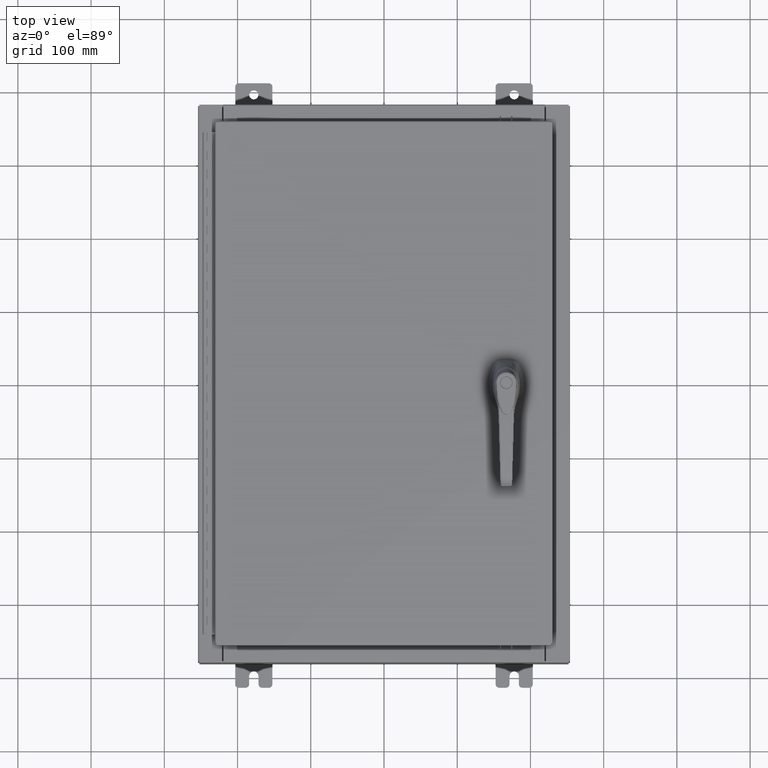
[diagram: clean part render]
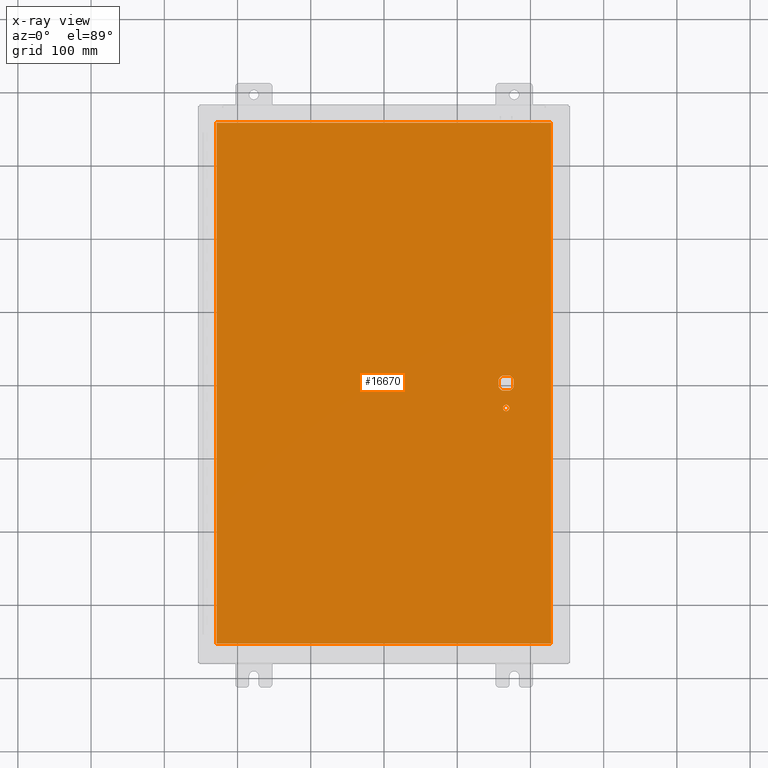
[diagram: x-ray — body ghosted, one internal face saturated and labeled with its STEP entity id]
A machine part, top view, then the same camera in x-ray: the body is ghosted and one INTERNAL B-rep face — a face not visible from any outside direction — is saturated and labeled: STEP entity #16670.
In plain terms, the highlighted planar face has unit normal (0, 0, -1).
Its self-contained STEP definition (entity closure, byte-faithful):
#336 = CARTESIAN_POINT ( 'NONE',  ( 6.778227370756310300, -0.4029999999999252000, -0.07470000000000003000 ) ) ;
#358 = ORIENTED_EDGE ( 'NONE', *, *, #3280, .T. ) ;
#1349 = DIRECTION ( 'NONE',  ( -1.000000000000000000, 0.0000000000000000000, 0.0000000000000000000 ) ) ;
#3280 = EDGE_CURVE ( 'NONE', #68779, #114848, #81499, .T. ) ;
#4573 = DIRECTION ( 'NONE',  ( -0.0000000000000000000, -0.0000000000000000000, 1.000000000000000000 ) ) ;
#5808 = CIRCLE ( 'NONE', #76717, 0.4499999999999156900 ) ;
#6442 = EDGE_CURVE ( 'NONE', #14933, #54590, #114801, .T. ) ;
#7031 = LINE ( 'NONE', #105819, #31216 ) ;
#7733 = CARTESIAN_POINT ( 'NONE',  ( 6.578000000000000300, 0.0000000000000000000, -0.07470000000000003000 ) ) ;
#7757 = CARTESIAN_POINT ( 'NONE',  ( 6.578000000000000300, 0.0000000000000000000, -0.07470000000000003000 ) ) ;
#8061 = VERTEX_POINT ( 'NONE', #93733 ) ;
#9568 = DIRECTION ( 'NONE',  ( -0.0000000000000000000, -0.0000000000000000000, 1.000000000000000000 ) ) ;
#9851 = CARTESIAN_POINT ( 'NONE',  ( 8.990300000000001300, -14.00629999999999800, -0.07470000000000076600 ) ) ;
#12297 = CARTESIAN_POINT ( 'NONE',  ( -8.990299999999997700, 14.00629999999999800, -0.07470000000000000300 ) ) ;
#12556 = CIRCLE ( 'NONE', #75507, 0.1715000000000000700 ) ;
#13131 = FACE_BOUND ( 'NONE', #46268, .T. ) ;
#13540 = ORIENTED_EDGE ( 'NONE', *, *, #23347, .F. ) ;
#14933 = VERTEX_POINT ( 'NONE', #12297 ) ;
#15861 = CARTESIAN_POINT ( 'NONE',  ( 8.990300000000001300, -14.00629999999999800, -0.07470000000000000300 ) ) ;
#16460 = CARTESIAN_POINT ( 'NONE',  ( -8.990299999999996000, -14.00629999999999600, -0.07470000000000000300 ) ) ;
#16670 = ADVANCED_FACE ( 'NONE', ( #13131, #107600, #104735 ), #36320, .T. ) ;
#16904 = DIRECTION ( 'NONE',  ( -1.000000000000000000, 8.881784197001256300E-016, 0.0000000000000000000 ) ) ;
#19274 = CARTESIAN_POINT ( 'NONE',  ( -8.990299999999996000, -14.00629999999999800, -0.07469999999999800400 ) ) ;
#19603 = DIRECTION ( 'NONE',  ( 0.0000000000000000000, -1.000000000000000000, 0.0000000000000000000 ) ) ;
#22568 = ORIENTED_EDGE ( 'NONE', *, *, #56903, .T. ) ;
#23347 = EDGE_CURVE ( 'NONE', #44611, #14933, #7031, .T. ) ;
#23799 = EDGE_CURVE ( 'NONE', #8061, #114848, #54020, .T. ) ;
#25521 = VERTEX_POINT ( 'NONE', #71933 ) ;
#25738 = EDGE_CURVE ( 'NONE', #82179, #69407, #65427, .T. ) ;
#26062 = ORIENTED_EDGE ( 'NONE', *, *, #27299, .F. ) ;
#26970 = CARTESIAN_POINT ( 'NONE',  ( 6.578000000000000300, -1.338000000000000100, -0.07470000000000003000 ) ) ;
#27299 = EDGE_CURVE ( 'NONE', #62941, #44611, #43754, .T. ) ;
#27683 = CARTESIAN_POINT ( 'NONE',  ( 6.578000000000000300, 0.0000000000000000000, -0.07470000000000003000 ) ) ;
#28137 = DIRECTION ( 'NONE',  ( 0.0000000000000000000, 1.000000000000000000, 0.0000000000000000000 ) ) ;
#29410 = CARTESIAN_POINT ( 'NONE',  ( 6.175000000000075300, 0.0000000000000000000, -0.07470000000000003000 ) ) ;
#29480 = EDGE_LOOP ( 'NONE', ( #358, #77548, #22568, #33194, #112126, #52088, #79731, #87837 ) ) ;
#30908 = CARTESIAN_POINT ( 'NONE',  ( 0.0000000000000000000, 0.4029999999999252000, -0.07470000000000003000 ) ) ;
#31216 = VECTOR ( 'NONE', #41720, 39.37007874015748100 ) ;
#33194 = ORIENTED_EDGE ( 'NONE', *, *, #45798, .T. ) ;
#34778 = EDGE_CURVE ( 'NONE', #25521, #56143, #72753, .T. ) ;
#34919 = DIRECTION ( 'NONE',  ( 1.000000000000000000, 0.0000000000000000000, 0.0000000000000000000 ) ) ;
#36134 = DIRECTION ( 'NONE',  ( -1.000000000000000000, 0.0000000000000000000, 0.0000000000000000000 ) ) ;
#36320 = PLANE ( 'NONE',  #52024 ) ;
#36872 = DIRECTION ( 'NONE',  ( -1.000000000000000000, 0.0000000000000000000, 0.0000000000000000000 ) ) ;
#41720 = DIRECTION ( 'NONE',  ( -1.000000000000000000, -0.0000000000000000000, -0.0000000000000000000 ) ) ;
#43754 = LINE ( 'NONE', #9851, #65185 ) ;
#44551 = VERTEX_POINT ( 'NONE', #78563 ) ;
#44611 = VERTEX_POINT ( 'NONE', #60476 ) ;
#44844 = EDGE_CURVE ( 'NONE', #54590, #62941, #44888, .T. ) ;
#44876 = ORIENTED_EDGE ( 'NONE', *, *, #44844, .F. ) ;
#44888 = LINE ( 'NONE', #19274, #50646 ) ;
#45544 = DIRECTION ( 'NONE',  ( 0.0000000000000000000, 0.0000000000000000000, -1.000000000000000000 ) ) ;
#45719 = ORIENTED_EDGE ( 'NONE', *, *, #34778, .T. ) ;
#45798 = EDGE_CURVE ( 'NONE', #102444, #44551, #66261, .T. ) ;
#46268 = EDGE_LOOP ( 'NONE', ( #49213, #45719 ) ) ;
#49213 = ORIENTED_EDGE ( 'NONE', *, *, #86788, .T. ) ;
#50646 = VECTOR ( 'NONE', #83270, 39.37007874015748100 ) ;
#51189 = VECTOR ( 'NONE', #55647, 39.37007874015748100 ) ;
#51390 = AXIS2_PLACEMENT_3D ( 'NONE', #110941, #55935, #1349 ) ;
#51777 = CARTESIAN_POINT ( 'NONE',  ( 6.778227370756310300, 0.4029999999999250300, -0.07470000000000003000 ) ) ;
#52024 = AXIS2_PLACEMENT_3D ( 'NONE', #63532, #45544, #109655 ) ;
#52088 = ORIENTED_EDGE ( 'NONE', *, *, #25738, .T. ) ;
#52911 = CARTESIAN_POINT ( 'NONE',  ( 0.0000000000000000000, -0.4029999999999252000, -0.07470000000000003000 ) ) ;
#54020 = LINE ( 'NONE', #110638, #51189 ) ;
#54590 = VERTEX_POINT ( 'NONE', #16460 ) ;
#55647 = DIRECTION ( 'NONE',  ( 0.0000000000000000000, -1.000000000000000000, 0.0000000000000000000 ) ) ;
#55935 = DIRECTION ( 'NONE',  ( -0.0000000000000000000, -0.0000000000000000000, 1.000000000000000000 ) ) ;
#56143 = VERTEX_POINT ( 'NONE', #90672 ) ;
#56799 = CARTESIAN_POINT ( 'NONE',  ( 6.980999999999926200, -0.2002273707563080300, -0.07470000000000003000 ) ) ;
#56903 = EDGE_CURVE ( 'NONE', #8061, #102444, #57861, .T. ) ;
#57861 = CIRCLE ( 'NONE', #76499, 0.4499999999999156900 ) ;
#59228 = CARTESIAN_POINT ( 'NONE',  ( 6.578000000000000300, -1.338000000000000100, -0.07470000000000003000 ) ) ;
#60250 = CARTESIAN_POINT ( 'NONE',  ( 6.377772629243691100, -0.4029999999999250300, -0.07470000000000003000 ) ) ;
#60476 = CARTESIAN_POINT ( 'NONE',  ( 8.990299999999999500, 14.00629999999999800, -0.07470000000000000300 ) ) ;
#62941 = VERTEX_POINT ( 'NONE', #15861 ) ;
#63076 = VECTOR ( 'NONE', #19603, 39.37007874015748100 ) ;
#63095 = AXIS2_PLACEMENT_3D ( 'NONE', #59228, #4573, #68503 ) ;
#63532 = CARTESIAN_POINT ( 'NONE',  ( 0.0000000000000000000, 0.0000000000000000000, -0.07470000000000000300 ) ) ;
#65185 = VECTOR ( 'NONE', #28137, 39.37007874015748100 ) ;
#65427 = LINE ( 'NONE', #29410, #89813 ) ;
#65960 = CARTESIAN_POINT ( 'NONE',  ( 6.175000000000075300, 0.2002273707563080300, -0.07470000000000003000 ) ) ;
#66261 = LINE ( 'NONE', #30908, #84911 ) ;
#68503 = DIRECTION ( 'NONE',  ( -1.000000000000000000, 0.0000000000000000000, 0.0000000000000000000 ) ) ;
#68779 = VERTEX_POINT ( 'NONE', #336 ) ;
#69407 = VERTEX_POINT ( 'NONE', #102065 ) ;
#71707 = DIRECTION ( 'NONE',  ( -0.0000000000000000000, -0.0000000000000000000, 1.000000000000000000 ) ) ;
#71933 = CARTESIAN_POINT ( 'NONE',  ( 6.406500000000000300, -1.338000000000000100, -0.07470000000000003000 ) ) ;
#72753 = CIRCLE ( 'NONE', #63095, 0.1715000000000000700 ) ;
#73234 = EDGE_CURVE ( 'NONE', #44551, #82179, #109385, .T. ) ;
#75507 = AXIS2_PLACEMENT_3D ( 'NONE', #26970, #91004, #36134 ) ;
#76499 = AXIS2_PLACEMENT_3D ( 'NONE', #27683, #91753, #36872 ) ;
#76717 = AXIS2_PLACEMENT_3D ( 'NONE', #7757, #71707, #16904 ) ;
#77548 = ORIENTED_EDGE ( 'NONE', *, *, #23799, .F. ) ;
#78563 = CARTESIAN_POINT ( 'NONE',  ( 6.377772629243691100, 0.4029999999999252000, -0.07470000000000003000 ) ) ;
#79731 = ORIENTED_EDGE ( 'NONE', *, *, #80697, .T. ) ;
#80576 = ORIENTED_EDGE ( 'NONE', *, *, #6442, .F. ) ;
#80697 = EDGE_CURVE ( 'NONE', #69407, #108298, #5808, .T. ) ;
#81499 = CIRCLE ( 'NONE', #104526, 0.4499999999999156900 ) ;
#82179 = VERTEX_POINT ( 'NONE', #65960 ) ;
#83270 = DIRECTION ( 'NONE',  ( 1.000000000000000000, -0.0000000000000000000, -0.0000000000000000000 ) ) ;
#84911 = VECTOR ( 'NONE', #95006, 39.37007874015748100 ) ;
#85060 = EDGE_LOOP ( 'NONE', ( #26062, #44876, #80576, #13540 ) ) ;
#85402 = EDGE_CURVE ( 'NONE', #108298, #68779, #115829, .T. ) ;
#86788 = EDGE_CURVE ( 'NONE', #56143, #25521, #12556, .T. ) ;
#87837 = ORIENTED_EDGE ( 'NONE', *, *, #85402, .T. ) ;
#89813 = VECTOR ( 'NONE', #93466, 39.37007874015748100 ) ;
#90672 = CARTESIAN_POINT ( 'NONE',  ( 6.749500000000001200, -1.338000000000000100, -0.07470000000000003000 ) ) ;
#91004 = DIRECTION ( 'NONE',  ( -0.0000000000000000000, -0.0000000000000000000, 1.000000000000000000 ) ) ;
#91356 = VECTOR ( 'NONE', #34919, 39.37007874015748100 ) ;
#91753 = DIRECTION ( 'NONE',  ( -0.0000000000000000000, -0.0000000000000000000, 1.000000000000000000 ) ) ;
#93466 = DIRECTION ( 'NONE',  ( 0.0000000000000000000, -1.000000000000000000, 0.0000000000000000000 ) ) ;
#93733 = CARTESIAN_POINT ( 'NONE',  ( 6.980999999999926200, 0.2002273707563080300, -0.07470000000000003000 ) ) ;
#94297 = DIRECTION ( 'NONE',  ( -1.000000000000000000, 0.0000000000000000000, 0.0000000000000000000 ) ) ;
#95006 = DIRECTION ( 'NONE',  ( -1.000000000000000000, 0.0000000000000000000, 0.0000000000000000000 ) ) ;
#102065 = CARTESIAN_POINT ( 'NONE',  ( 6.175000000000075300, -0.2002273707563079800, -0.07470000000000003000 ) ) ;
#102444 = VERTEX_POINT ( 'NONE', #51777 ) ;
#104526 = AXIS2_PLACEMENT_3D ( 'NONE', #7733, #9568, #94297 ) ;
#104735 = FACE_BOUND ( 'NONE', #29480, .T. ) ;
#105819 = CARTESIAN_POINT ( 'NONE',  ( 8.990300000000001300, 14.00629999999999800, -0.07470000000000019700 ) ) ;
#107600 = FACE_OUTER_BOUND ( 'NONE', #85060, .T. ) ;
#108298 = VERTEX_POINT ( 'NONE', #60250 ) ;
#109385 = CIRCLE ( 'NONE', #51390, 0.4499999999999156900 ) ;
#109655 = DIRECTION ( 'NONE',  ( -1.000000000000000000, 0.0000000000000000000, -0.0000000000000000000 ) ) ;
#110638 = CARTESIAN_POINT ( 'NONE',  ( 6.980999999999926200, 0.0000000000000000000, -0.07470000000000003000 ) ) ;
#110941 = CARTESIAN_POINT ( 'NONE',  ( 6.578000000000000300, 0.0000000000000000000, -0.07470000000000003000 ) ) ;
#112126 = ORIENTED_EDGE ( 'NONE', *, *, #73234, .T. ) ;
#112982 = CARTESIAN_POINT ( 'NONE',  ( -8.990299999999997700, 14.00630000000000100, -0.07470000000000019700 ) ) ;
#114801 = LINE ( 'NONE', #112982, #63076 ) ;
#114848 = VERTEX_POINT ( 'NONE', #56799 ) ;
#115829 = LINE ( 'NONE', #52911, #91356 ) ;